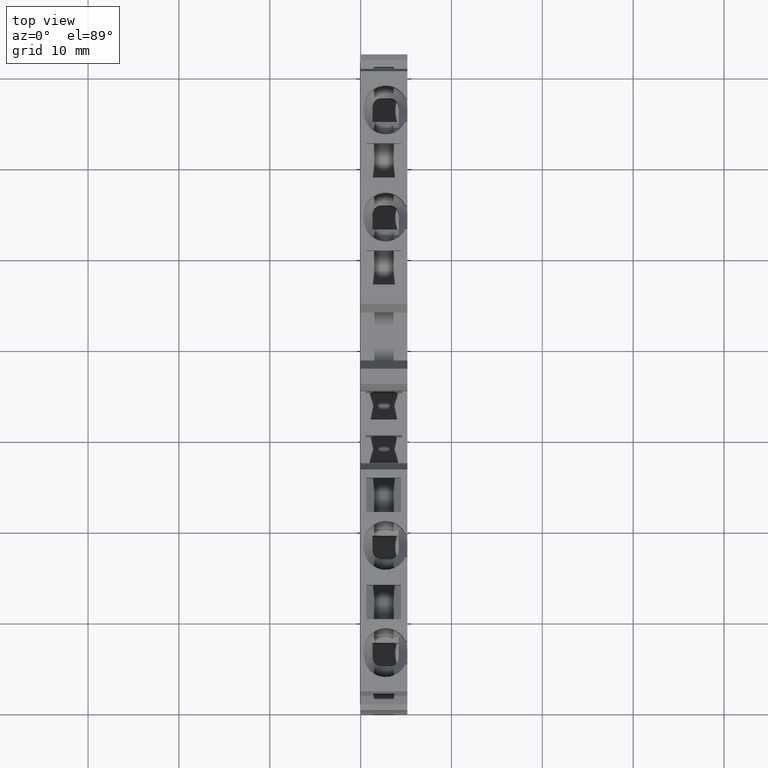
[diagram: clean part render]
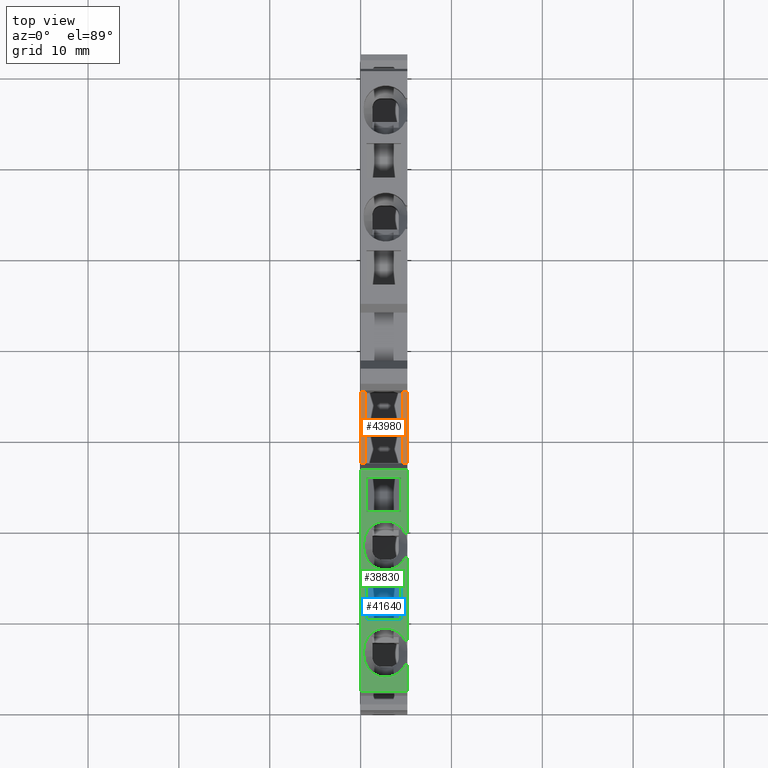
[diagram: same view with three faces highlighted in distinct colors, each labeled with its STEP entity id]
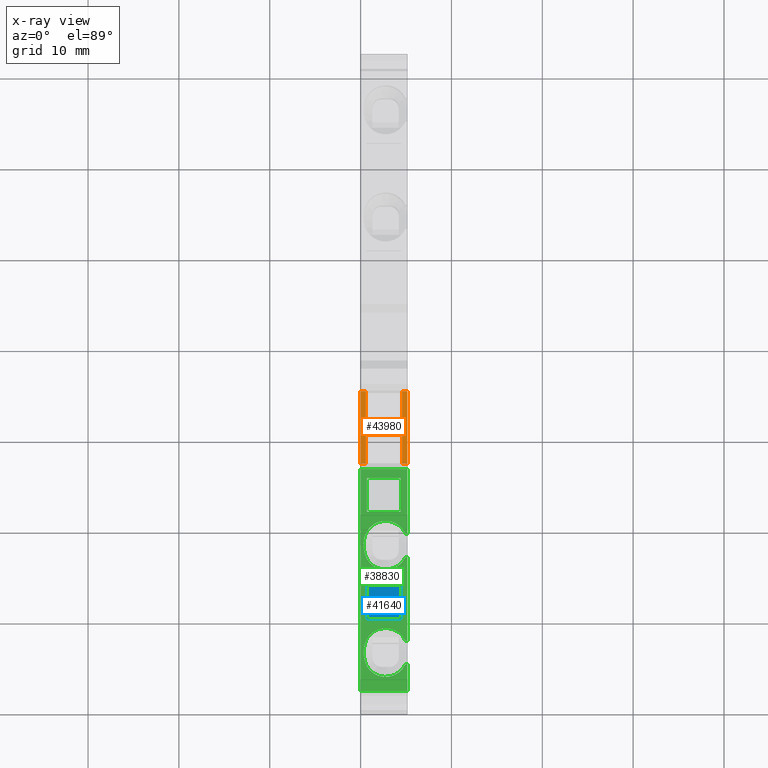
[diagram: x-ray of the same camera — body ghosted, the three highlighted faces saturated]
A machine part, top view with three faces highlighted in distinct colors.
The next image is the same camera in x-ray (body ghosted, the three faces saturated) — at least one of them is partly hidden behind the body in this view.
Their STEP definitions:

[orange] entity #43980 — the highlighted planar face has unit normal (0, -0, -1).
#3380=CARTESIAN_POINT('',(32.1234887553407,27.1997716918239,
-5.14999999999914));
#3390=VERTEX_POINT('',#3380);
#3420=CARTESIAN_POINT('',(1.75765734259424E-14,23.25550323033,
-5.15000000000011));
#3430=DIRECTION('',(-0.992546151641323,-0.121869343405148,
4.13556346824791E-17));
#3440=VECTOR('',#3430,1.);
#3450=LINE('',#3420,#3440);
#3460=CARTESIAN_POINT('',(24.1831195422103,26.2248169445827,
-5.1499999999981));
#3470=VERTEX_POINT('',#3460);
#3480=EDGE_CURVE('',#3390,#3470,#3450,.T.);
#42590=CARTESIAN_POINT('',(24.1831195422103,26.2248169445833,
-0.575000000000111));
#42600=VERTEX_POINT('',#42590);
#42680=CARTESIAN_POINT('',(27.3096399198998,26.6087053763119,
-0.575000000000111));
#42690=VERTEX_POINT('',#42680);
#42720=CARTESIAN_POINT('',(-5.25780815450058E-14,23.2555032303305,
-0.57500000000011));
#42730=DIRECTION('',(-0.992546151641323,-0.121869343405148,
4.13556346824791E-17));
#42740=VECTOR('',#42730,1.);
#42750=LINE('',#42720,#42740);
#42760=EDGE_CURVE('',#42690,#42600,#42750,.T.);
#42940=CARTESIAN_POINT('',(24.1831195422103,26.2248169445834,
-8.705496016009E-14));
#42950=DIRECTION('',(1.5334350813322E-14,-1.25227609306364E-13,-1.));
#42960=VECTOR('',#42950,1.);
#42970=LINE('',#42940,#42960);
#42980=CARTESIAN_POINT('',(24.1831195422103,26.2248169445834,
1.90111795905425E-12));
#42990=VERTEX_POINT('',#42980);
#43000=EDGE_CURVE('',#42990,#42600,#42970,.T.);
#43100=CARTESIAN_POINT('',(24.1831195422103,26.2248169445828,
-4.57500000000012));
#43110=VERTEX_POINT('',#43100);
#43120=EDGE_CURVE('',#43110,#3470,#42970,.T.);
#43310=CARTESIAN_POINT('',(30.7698204486038,27.0335621231729,
-6.18092279139371));
#43320=DIRECTION('',(0.121869343405147,-0.992546151641322,
1.26162968961438E-13));
#43330=DIRECTION('',(-0.992546151641323,-0.121869343405148,
4.13556346824791E-17));
#43340=AXIS2_PLACEMENT_3D('',#43310,#43320,#43330);
#43350=PLANE('',#43340);
#43360=ORIENTED_EDGE('',*,*,#43000,.F.);
#43370=ORIENTED_EDGE('',*,*,#42760,.T.);
#43380=CARTESIAN_POINT('',(27.3096399198997,26.608705376312,
-8.71852304093406E-14));
#43390=DIRECTION('',(-1.5334350813322E-14,1.25227609306364E-13,1.));
#43400=VECTOR('',#43390,1.);
#43410=LINE('',#43380,#43400);
#43420=CARTESIAN_POINT('',(27.3096399198998,26.6087053763114,
-4.57500000000012));
#43430=VERTEX_POINT('',#43420);
#43440=EDGE_CURVE('',#43430,#42690,#43410,.T.);
#43450=ORIENTED_EDGE('',*,*,#43440,.T.);
#43460=CARTESIAN_POINT('',(8.75932170828233E-15,23.25550323033,
-4.57500000000012));
#43470=DIRECTION('',(-0.992546151641323,-0.121869343405148,
4.13556346824791E-17));
#43480=VECTOR('',#43470,1.);
#43490=LINE('',#43460,#43480);
#43500=EDGE_CURVE('',#43430,#43110,#43490,.T.);
#43510=ORIENTED_EDGE('',*,*,#43500,.F.);
#43520=ORIENTED_EDGE('',*,*,#43120,.F.);
#43530=ORIENTED_EDGE('',*,*,#3480,.T.);
#43540=CARTESIAN_POINT('',(32.1234887553406,27.1997716918245,
-8.73858052375514E-14));
#43550=DIRECTION('',(-1.5334350813322E-14,1.25227609306364E-13,1.));
#43560=VECTOR('',#43550,1.);
#43570=LINE('',#43540,#43560);
#43580=CARTESIAN_POINT('',(32.1234887553407,27.199771691824,
-4.57500000000012));
#43590=VERTEX_POINT('',#43580);
#43600=EDGE_CURVE('',#3390,#43590,#43570,.T.);
#43610=ORIENTED_EDGE('',*,*,#43600,.F.);
#43620=CARTESIAN_POINT('',(8.75932170828233E-15,23.25550323033,
-4.57500000000012));
#43630=DIRECTION('',(-0.992546151641323,-0.121869343405148,
4.13556346824791E-17));
#43640=VECTOR('',#43630,1.);
#43650=LINE('',#43620,#43640);
#43660=CARTESIAN_POINT('',(28.996968377652,26.8158832600955,
-4.57500000000012));
#43670=VERTEX_POINT('',#43660);
#43680=EDGE_CURVE('',#43590,#43670,#43650,.T.);
#43690=ORIENTED_EDGE('',*,*,#43680,.F.);
#43700=CARTESIAN_POINT('',(28.996968377652,26.815883260096,
-8.72555349883E-14));
#43710=DIRECTION('',(-1.5334350813322E-14,1.25227609306364E-13,1.));
#43720=VECTOR('',#43710,1.);
#43730=LINE('',#43700,#43720);
#43740=CARTESIAN_POINT('',(28.996968377652,26.815883260096,
-0.575000000000111));
#43750=VERTEX_POINT('',#43740);
#43760=EDGE_CURVE('',#43670,#43750,#43730,.T.);
#43770=ORIENTED_EDGE('',*,*,#43760,.F.);
#43780=CARTESIAN_POINT('',(-5.25780815450058E-14,23.2555032303305,
-0.57500000000011));
#43790=DIRECTION('',(-0.992546151641323,-0.121869343405148,
4.13556346824791E-17));
#43800=VECTOR('',#43790,1.);
#43810=LINE('',#43780,#43800);
#43820=CARTESIAN_POINT('',(32.1234887553407,27.1997716918245,
-0.575000000000111));
#43830=VERTEX_POINT('',#43820);
#43840=EDGE_CURVE('',#43830,#43750,#43810,.T.);
#43850=ORIENTED_EDGE('',*,*,#43840,.T.);
#43860=CARTESIAN_POINT('',(32.1234887553407,27.1997716918245,
8.61433026914367E-13));
#43870=VERTEX_POINT('',#43860);
#43880=EDGE_CURVE('',#43830,#43870,#43570,.T.);
#43890=ORIENTED_EDGE('',*,*,#43880,.F.);
#43900=CARTESIAN_POINT('',(-6.13953332626658E-14,23.2555032303306,
-1.14247006089848E-13));
#43910=DIRECTION('',(-0.992546151641323,-0.121869343405148,
4.13556346824791E-17));
#43920=VECTOR('',#43910,1.);
#43930=LINE('',#43900,#43920);
#43940=EDGE_CURVE('',#43870,#42990,#43930,.T.);
#43950=ORIENTED_EDGE('',*,*,#43940,.F.);
#43960=EDGE_LOOP('',(#43950,#43890,#43850,#43770,#43690,#43610,#43530,
#43520,#43510,#43450,#43370,#43360));
#43970=FACE_OUTER_BOUND('',#43960,.T.);
#43980=ADVANCED_FACE('',(#43970),#43350,.F.);

[blue] entity #41640 — the highlighted planar face has unit normal (-0, 0.5736, 0.8192).
#40430=CARTESIAN_POINT('',(11.030827653592,23.3878171624625,
-0.699999999999948));
#40440=VERTEX_POINT('',#40430);
#40520=CARTESIAN_POINT('',(6.93488346461015,25.5656693193032,
-0.700000000000283));
#40530=VERTEX_POINT('',#40520);
#40560=CARTESIAN_POINT('',(-5.06612876938228E-14,29.2530122649097,
-0.700000000000852));
#40570=DIRECTION('',(-0.882947592858927,0.469471562785891,
-7.23302295836762E-14));
#40580=VECTOR('',#40570,1.);
#40590=LINE('',#40560,#40580);
#40600=EDGE_CURVE('',#40440,#40530,#40590,.T.);
#40820=CARTESIAN_POINT('',(6.93488346461051,25.5656693193003,
-4.50000000000028));
#40830=VERTEX_POINT('',#40820);
#40860=CARTESIAN_POINT('',(6.93488346461009,25.5656693193037,
-2.69001981791267E-13));
#40870=DIRECTION('',(-9.27974070004748E-14,7.56113574264365E-13,1.));
#40880=VECTOR('',#40870,1.);
#40890=LINE('',#40860,#40880);
#40900=EDGE_CURVE('',#40830,#40530,#40890,.T.);
#41070=CARTESIAN_POINT('',(11.0308276535923,23.3878171624597,
-4.49999999999995));
#41080=VERTEX_POINT('',#41070);
#41110=CARTESIAN_POINT('',(7.60924539680075E-15,29.253012264907,
-4.50000000000085));
#41120=DIRECTION('',(0.882947592858927,-0.469471562785891,
7.23302295836762E-14));
#41130=VECTOR('',#41120,1.);
#41140=LINE('',#41110,#41130);
#41150=EDGE_CURVE('',#40830,#41080,#41140,.T.);
#41350=CARTESIAN_POINT('',(11.0308276535919,23.3878171624631,
6.65338823382289E-14));
#41360=DIRECTION('',(-9.27974070004895E-14,7.56113574264373E-13,1.));
#41370=VECTOR('',#41360,1.);
#41380=LINE('',#41350,#41370);
#41390=EDGE_CURVE('',#41080,#40440,#41380,.T.);
#41530=CARTESIAN_POINT('',(9.26321285022306,24.3276746249579,
-1.19999999999816));
#41540=DIRECTION('',(0.469471562785891,0.882947592858927,
-6.24042916637689E-13));
#41550=DIRECTION('',(0.882947592858928,-0.469471562785891,
-1.38328393266991E-12));
#41560=AXIS2_PLACEMENT_3D('',#41530,#41540,#41550);
#41570=PLANE('',#41560);
#41580=ORIENTED_EDGE('',*,*,#40900,.T.);
#41590=ORIENTED_EDGE('',*,*,#41150,.F.);
#41600=ORIENTED_EDGE('',*,*,#41390,.F.);
#41610=ORIENTED_EDGE('',*,*,#40600,.F.);
#41620=EDGE_LOOP('',(#41610,#41600,#41590,#41580));
#41630=FACE_OUTER_BOUND('',#41620,.T.);
#41640=ADVANCED_FACE('',(#41630),#41570,.T.);

[green] entity #38830 — the highlighted planar face has unit normal (0, -0, -1).
#3620=CARTESIAN_POINT('',(22.7387593504523,32.092530765402,
-5.14999999999585));
#3630=VERTEX_POINT('',#3620);
#3660=CARTESIAN_POINT('',(1.75765734254563E-14,29.3005621830828,
-5.15000000000087));
#3670=DIRECTION('',(0.992546151641338,0.121869343405022,
-4.13556346666009E-17));
#3680=VECTOR('',#3670,1.);
#3690=LINE('',#3660,#3680);
#3700=CARTESIAN_POINT('',(-1.50051398889325,29.1163222318281,
-5.14999999999268));
#3710=VERTEX_POINT('',#3700);
#3720=EDGE_CURVE('',#3710,#3630,#3690,.T.);
#10110=CARTESIAN_POINT('',(-1.50051398889333,29.1163222318287,
7.32051649734597E-12));
#10120=VERTEX_POINT('',#10110);
#10240=CARTESIAN_POINT('',(-1.50051398889333,29.1163222318287,
-8.42993101305266E-13));
#10250=DIRECTION('',(-1.5334350813322E-14,1.25227609306364E-13,1.));
#10260=VECTOR('',#10250,1.);
#10270=LINE('',#10240,#10260);
#10280=EDGE_CURVE('',#3710,#10120,#10270,.T.);
#10590=CARTESIAN_POINT('',(13.1542371585003,30.9156994166009,
5.40167323663024E-12));
#10600=VERTEX_POINT('',#10590);
#10630=CARTESIAN_POINT('',(13.1542371585007,30.9156994165977,
-8.43603709218233E-13));
#10640=DIRECTION('',(-1.51563782333925E-14,1.23778138960737E-13,1.));
#10650=VECTOR('',#10640,1.);
#10660=LINE('',#10630,#10650);
#10670=CARTESIAN_POINT('',(13.1542371585004,30.9156994166009,
-0.218257577073917));
#10680=VERTEX_POINT('',#10670);
#10690=EDGE_CURVE('',#10680,#10600,#10660,.T.);
#10920=CARTESIAN_POINT('',(14.1467833101424,31.0375687600024,
-2.40000000000086));
#10930=DIRECTION('',(0.121869343405148,-0.992546151641323,
1.26162968961438E-13));
#10940=DIRECTION('',(-0.992546151641323,-0.121869343405148,
4.13556346825043E-17));
#10950=AXIS2_PLACEMENT_3D('',#10920,#10930,#10940);
#10960=CIRCLE('',#10950,2.4);
#10970=CARTESIAN_POINT('',(14.1467833101315,31.0375687600041,
-4.80000000000086));
#10980=VERTEX_POINT('',#10970);
#10990=EDGE_CURVE('',#10680,#10980,#10960,.T.);
#13430=CARTESIAN_POINT('',(14.7423110011266,31.1106903660483,
-4.80000000000086));
#13440=VERTEX_POINT('',#13430);
#13470=CARTESIAN_POINT('',(14.742311001127,31.1106903660454,
-2.40000000000086));
#13480=DIRECTION('',(-0.121869343405031,0.992546151641337,
-1.26162968961438E-13));
#13490=DIRECTION('',(-0.992546151641337,-0.121869343405031,
4.13556346677116E-17));
#13500=AXIS2_PLACEMENT_3D('',#13470,#13480,#13490);
#13510=CIRCLE('',#13500,2.4);
#13520=CARTESIAN_POINT('',(15.7348571527678,31.2325597094539,
-0.218257577073691));
#13530=VERTEX_POINT('',#13520);
#13540=EDGE_CURVE('',#13530,#13440,#13510,.T.);
#14030=CARTESIAN_POINT('',(15.7348571527682,31.2325597094507,
-8.43711233868363E-13));
#14040=DIRECTION('',(1.51563782333925E-14,-1.23778138960737E-13,-1.));
#14050=VECTOR('',#14040,1.);
#14060=LINE('',#14030,#14050);
#14070=CARTESIAN_POINT('',(15.7348571527678,31.232559709454,
5.06377563368466E-12));
#14080=VERTEX_POINT('',#14070);
#14090=EDGE_CURVE('',#14080,#13530,#14060,.T.);
#23090=CARTESIAN_POINT('',(1.22095506407934E-14,29.3005621830796,
-4.80000000000085));
#23100=DIRECTION('',(-0.992546151641338,-0.121869343405022,
7.83817282384649E-16));
#23110=VECTOR('',#23100,1.);
#23120=LINE('',#23090,#23110);
#23130=EDGE_CURVE('',#13440,#10980,#23120,.T.);
#24240=CARTESIAN_POINT('',(1.44219256913256,29.4776411644216,
6.93520851153713E-12));
#24250=VERTEX_POINT('',#24240);
#24280=CARTESIAN_POINT('',(1.44219256913243,29.4776411644226,
-8.43115712729703E-13));
#24290=DIRECTION('',(-1.51563782333925E-14,1.23778138960737E-13,1.));
#24300=VECTOR('',#24290,1.);
#24310=LINE('',#24280,#24300);
#24320=CARTESIAN_POINT('',(1.44219256913258,29.4776411644215,
-0.218257577073856));
#24330=VERTEX_POINT('',#24320);
#24340=EDGE_CURVE('',#24330,#24250,#24310,.T.);
#24570=CARTESIAN_POINT('',(2.43473872077412,29.5995105078274,
-2.40000000000086));
#24580=DIRECTION('',(0.121869343405148,-0.992546151641323,
1.26162968961438E-13));
#24590=DIRECTION('',(-0.992546151641323,-0.121869343405148,
4.13556346825043E-17));
#24600=AXIS2_PLACEMENT_3D('',#24570,#24580,#24590);
#24610=CIRCLE('',#24600,2.4);
#24620=CARTESIAN_POINT('',(2.43473841434175,29.5995104702009,
-4.80000000000084));
#24630=VERTEX_POINT('',#24620);
#24640=EDGE_CURVE('',#24330,#24630,#24610,.T.);
#27080=CARTESIAN_POINT('',(3.03026641175884,29.6726321138691,
-4.80000000000086));
#27090=VERTEX_POINT('',#27080);
#27120=CARTESIAN_POINT('',(3.03026641175868,29.6726321138704,
-2.40000000000086));
#27130=DIRECTION('',(-0.121869343405031,0.992546151641337,
-1.26162968961438E-13));
#27140=DIRECTION('',(-0.992546151641337,-0.121869343405031,
4.13556346677116E-17));
#27150=AXIS2_PLACEMENT_3D('',#27120,#27130,#27140);
#27160=CIRCLE('',#27150,2.4);
#27170=CARTESIAN_POINT('',(4.02281256340005,29.7945014572747,
-0.218257577073689));
#27180=VERTEX_POINT('',#27170);
#27190=EDGE_CURVE('',#27180,#27090,#27160,.T.);
#27700=CARTESIAN_POINT('',(4.02281256339993,29.7945014572757,
-8.43223237379838E-13));
#27710=DIRECTION('',(1.51563782333925E-14,-1.23778138960737E-13,-1.));
#27720=VECTOR('',#27710,1.);
#27730=LINE('',#27700,#27720);
#27740=CARTESIAN_POINT('',(4.02281256340005,29.7945014572747,
6.59731090859154E-12));
#27750=VERTEX_POINT('',#27740);
#27760=EDGE_CURVE('',#27750,#27180,#27730,.T.);
#36740=CARTESIAN_POINT('',(1.22095506407936E-14,29.3005621830839,
-4.80000000000085));
#36750=DIRECTION('',(-0.992546151641338,-0.121869343405022,
7.83817282384649E-16));
#36760=VECTOR('',#36750,1.);
#36770=LINE('',#36740,#36760);
#36780=EDGE_CURVE('',#27090,#24630,#36770,.T.);
#37700=CARTESIAN_POINT('',(-8.67760445304685,28.2350863306281,
-8.42694059159256E-13));
#37710=DIRECTION('',(0.121869343405022,-0.992546151641337,
1.26162968961438E-13));
#37720=DIRECTION('',(-0.992546151641338,-0.121869343405022,
4.13556346665504E-17));
#37730=AXIS2_PLACEMENT_3D('',#37700,#37710,#37720);
#37740=PLANE('',#37730);
#37750=CARTESIAN_POINT('',(-5.06612876938266E-14,29.3005621830833,
-0.700000000000857));
#37760=DIRECTION('',(0.992546151641338,0.121869343405022,
-4.13556346666009E-17));
#37770=VECTOR('',#37760,1.);
#37780=LINE('',#37750,#37770);
#37790=CARTESIAN_POINT('',(18.0921540349044,31.5219993720445,
-0.700000000000858));
#37800=VERTEX_POINT('',#37790);
#37810=CARTESIAN_POINT('',(21.8638296391546,31.9851029049801,
-0.700000000000858));
#37820=VERTEX_POINT('',#37810);
#37830=EDGE_CURVE('',#37800,#37820,#37780,.T.);
#37840=ORIENTED_EDGE('',*,*,#37830,.F.);
#37850=CARTESIAN_POINT('',(21.8638296391546,31.9851029049802,
-8.43966604912843E-13));
#37860=DIRECTION('',(1.5334350813322E-14,-1.25227609306364E-13,-1.));
#37870=VECTOR('',#37860,1.);
#37880=LINE('',#37850,#37870);
#37890=CARTESIAN_POINT('',(21.8638296391547,31.9851029049796,
-4.50000000000086));
#37900=VERTEX_POINT('',#37890);
#37910=EDGE_CURVE('',#37820,#37900,#37880,.T.);
#37920=ORIENTED_EDGE('',*,*,#37910,.F.);
#37930=CARTESIAN_POINT('',(7.60924539679702E-15,29.3005621830829,
-4.50000000000086));
#37940=DIRECTION('',(-0.992546151641338,-0.121869343405022,
4.13556346666009E-17));
#37950=VECTOR('',#37940,1.);
#37960=LINE('',#37930,#37950);
#37970=CARTESIAN_POINT('',(18.0921540349045,31.521999372044,
-4.50000000000086));
#37980=VERTEX_POINT('',#37970);
#37990=EDGE_CURVE('',#37900,#37980,#37960,.T.);
#38000=ORIENTED_EDGE('',*,*,#37990,.F.);
#38010=CARTESIAN_POINT('',(18.0921540349044,31.5219993720446,
-8.43809453491608E-13));
#38020=DIRECTION('',(-1.5334350813322E-14,1.25227609306364E-13,1.));
#38030=VECTOR('',#38020,1.);
#38040=LINE('',#38010,#38030);
#38050=EDGE_CURVE('',#37980,#37800,#38040,.T.);
#38060=ORIENTED_EDGE('',*,*,#38050,.F.);
#38070=EDGE_LOOP('',(#38060,#38000,#37920,#37840));
#38080=FACE_BOUND('',#38070,.T.);
#38090=CARTESIAN_POINT('',(7.60924539679702E-15,29.3005621830829,
-4.50000000000086));
#38100=DIRECTION('',(-0.992546151641338,-0.121869343405022,
4.13556346666009E-17));
#38110=VECTOR('',#38100,1.);
#38120=LINE('',#38090,#38110);
#38130=CARTESIAN_POINT('',(10.1517850497869,30.5470446528003,
-4.50000000000086));
#38140=VERTEX_POINT('',#38130);
#38150=CARTESIAN_POINT('',(6.38010944553835,30.083941119865,
-4.50000000000086));
#38160=VERTEX_POINT('',#38150);
#38170=EDGE_CURVE('',#38140,#38160,#38120,.T.);
#38180=ORIENTED_EDGE('',*,*,#38170,.F.);
#38190=CARTESIAN_POINT('',(6.38010944553828,30.0839411198655,
-8.43321457002543E-13));
#38200=DIRECTION('',(-1.5334350813322E-14,1.25227609306364E-13,1.));
#38210=VECTOR('',#38200,1.);
#38220=LINE('',#38190,#38210);
#38230=CARTESIAN_POINT('',(6.38010944553829,30.0839411198654,
-0.700000000000858));
#38240=VERTEX_POINT('',#38230);
#38250=EDGE_CURVE('',#38160,#38240,#38220,.T.);
#38260=ORIENTED_EDGE('',*,*,#38250,.F.);
#38270=CARTESIAN_POINT('',(-5.06612876938266E-14,29.3005621830833,
-0.700000000000857));
#38280=DIRECTION('',(0.992546151641338,0.121869343405022,
-4.13556346666009E-17));
#38290=VECTOR('',#38280,1.);
#38300=LINE('',#38270,#38290);
#38310=CARTESIAN_POINT('',(10.1517850497869,30.5470446528008,
-0.700000000000858));
#38320=VERTEX_POINT('',#38310);
#38330=EDGE_CURVE('',#38240,#38320,#38300,.T.);
#38340=ORIENTED_EDGE('',*,*,#38330,.F.);
#38350=CARTESIAN_POINT('',(10.1517850497868,30.5470446528009,
-8.43478608423775E-13));
#38360=DIRECTION('',(1.5334350813322E-14,-1.25227609306364E-13,-1.));
#38370=VECTOR('',#38360,1.);
#38380=LINE('',#38350,#38370);
#38390=EDGE_CURVE('',#38320,#38140,#38380,.T.);
#38400=ORIENTED_EDGE('',*,*,#38390,.F.);
#38410=EDGE_LOOP('',(#38400,#38340,#38260,#38180));
#38420=FACE_BOUND('',#38410,.T.);
#38430=CARTESIAN_POINT('',(-6.13953332631517E-14,29.3005621830834,
-8.71255286859113E-13));
#38440=DIRECTION('',(0.992546151641338,0.121869343405022,
-4.13556346666009E-17));
#38450=VECTOR('',#38440,1.);
#38460=LINE('',#38430,#38450);
#38470=CARTESIAN_POINT('',(22.7387593504523,32.0925307654026,
4.14670850674618E-12));
#38480=VERTEX_POINT('',#38470);
#38490=EDGE_CURVE('',#14080,#38480,#38460,.T.);
#38500=ORIENTED_EDGE('',*,*,#38490,.T.);
#38510=ORIENTED_EDGE('',*,*,#14090,.F.);
#38520=ORIENTED_EDGE('',*,*,#13540,.F.);
#38530=ORIENTED_EDGE('',*,*,#23130,.F.);
#38540=ORIENTED_EDGE('',*,*,#10990,.T.);
#38550=ORIENTED_EDGE('',*,*,#10690,.F.);
#38560=CARTESIAN_POINT('',(-6.13953332631517E-14,29.3005621830834,
-8.71255286859113E-13));
#38570=DIRECTION('',(0.992546151641338,0.121869343405022,
-4.13556346666009E-17));
#38580=VECTOR('',#38570,1.);
#38590=LINE('',#38560,#38580);
#38600=EDGE_CURVE('',#27750,#10600,#38590,.T.);
#38610=ORIENTED_EDGE('',*,*,#38600,.T.);
#38620=ORIENTED_EDGE('',*,*,#27760,.F.);
#38630=ORIENTED_EDGE('',*,*,#27190,.F.);
#38640=ORIENTED_EDGE('',*,*,#36780,.F.);
#38650=ORIENTED_EDGE('',*,*,#24640,.T.);
#38660=ORIENTED_EDGE('',*,*,#24340,.F.);
#38670=CARTESIAN_POINT('',(-6.13953332631517E-14,29.3005621830834,
-8.71255286859113E-13));
#38680=DIRECTION('',(0.992546151641338,0.121869343405022,
-4.13556346666009E-17));
#38690=VECTOR('',#38680,1.);
#38700=LINE('',#38670,#38690);
#38710=EDGE_CURVE('',#10120,#24250,#38700,.T.);
#38720=ORIENTED_EDGE('',*,*,#38710,.T.);
#38730=ORIENTED_EDGE('',*,*,#10280,.T.);
#38740=ORIENTED_EDGE('',*,*,#3720,.F.);
#38750=CARTESIAN_POINT('',(22.7387593504523,32.0925307654026,
-8.44003059916409E-13));
#38760=DIRECTION('',(-1.5334350813322E-14,1.25227609306364E-13,1.));
#38770=VECTOR('',#38760,1.);
#38780=LINE('',#38750,#38770);
#38790=EDGE_CURVE('',#3630,#38480,#38780,.T.);
#38800=ORIENTED_EDGE('',*,*,#38790,.F.);
#38810=EDGE_LOOP('',(#38800,#38740,#38730,#38720,#38660,#38650,#38640,
#38630,#38620,#38610,#38550,#38540,#38530,#38520,#38510,#38500));
#38820=FACE_OUTER_BOUND('',#38810,.T.);
#38830=ADVANCED_FACE('',(#38080,#38420,#38820),#37740,.F.);